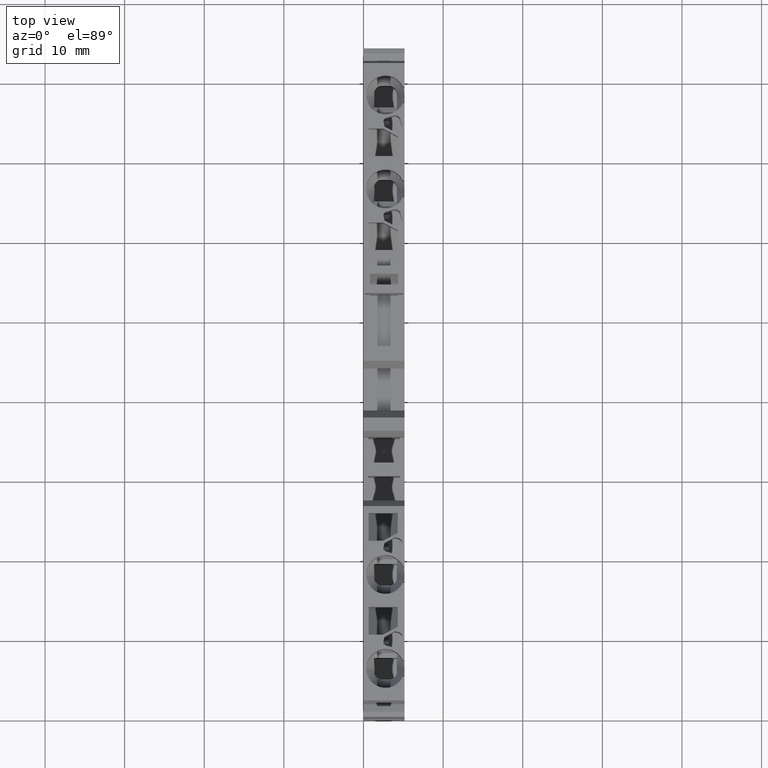
[diagram: clean part render]
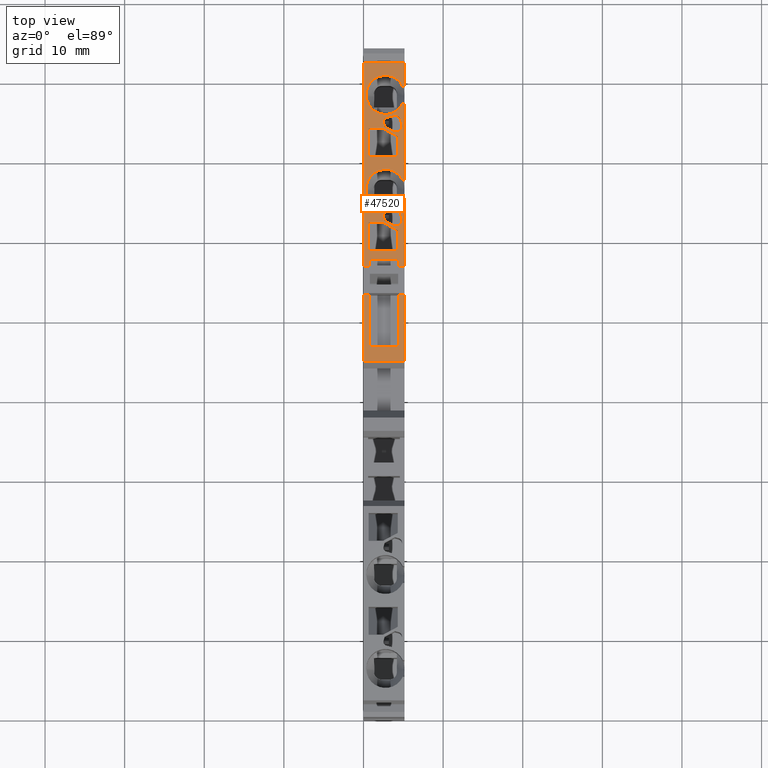
[diagram: same view with one face highlighted and labeled with its STEP entity id]
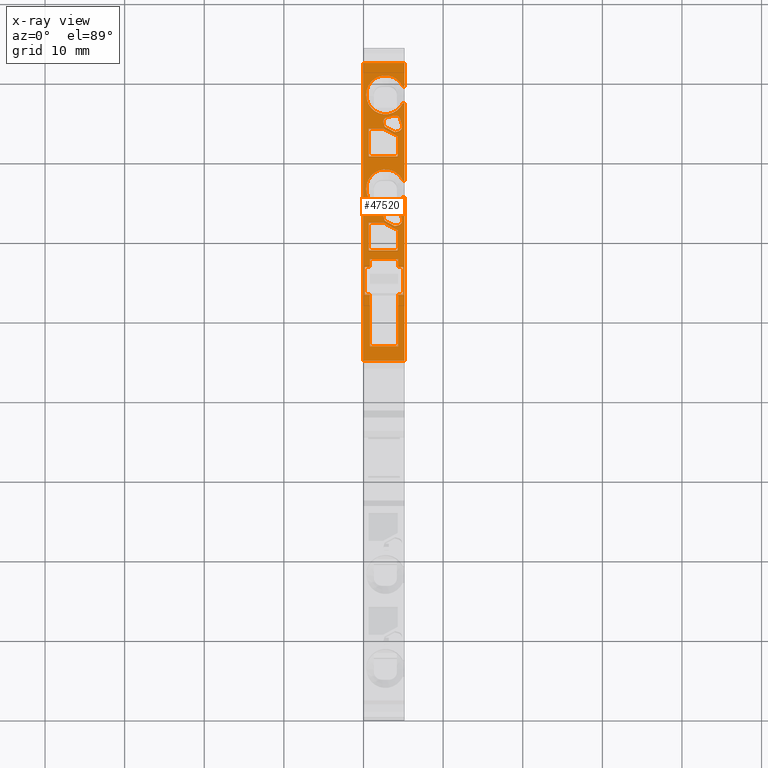
[diagram: x-ray of the same camera — body ghosted, the highlighted face saturated]
A machine part, top view. The second image highlights one B-rep face of the part: STEP entity #47520.
The next image is the same camera in x-ray: the body ghosted, the highlighted face saturated — about 0% of this face is hidden behind the body in this view.
In plain terms, the highlighted planar face has unit normal (0, -0, 1).
Its self-contained STEP definition (entity closure, byte-faithful):
#2900=CARTESIAN_POINT('',(40.5182262383768,-9.15000000000216,
51.5093312729843));
#2910=DIRECTION('',(1.38777878078145E-17,1.,-1.09238746445644E-30));
#2920=DIRECTION('',(-1.,1.38777878078145E-17,1.68987321797373E-17));
#2930=AXIS2_PLACEMENT_3D('',#2900,#2910,#2920);
#2940=CIRCLE('',#2930,0.5);
#2950=CARTESIAN_POINT('',(41.0011891515204,-9.15000000000211,
51.3799217504333));
#2960=VERTEX_POINT('',#2950);
#2970=CARTESIAN_POINT('',(40.3888167158256,-9.15000000000218,
51.0263683598395));
#2980=VERTEX_POINT('',#2970);
#2990=EDGE_CURVE('',#2960,#2980,#2940,.T.);
#8030=CARTESIAN_POINT('',(-30.695855961931,-9.15000000001039,
75.461093256644));
#8040=DIRECTION('',(0.965925826289069,1.11549658399213E-13,
-0.258819045102521));
#8050=VECTOR('',#8040,1.);
#8060=LINE('',#8030,#8050);
#8070=CARTESIAN_POINT('',(51.8276481278213,-9.15000000000085,
53.3489869792084));
#8080=VERTEX_POINT('',#8070);
#8090=CARTESIAN_POINT('',(52.5810702723268,-9.15000000000076,
53.1471081240284));
#8100=VERTEX_POINT('',#8090);
#8110=EDGE_CURVE('',#8080,#8100,#8060,.T.);
#9010=CARTESIAN_POINT('',(34.0044288432876,-9.15000000000291,49.32));
#9020=VERTEX_POINT('',#9010);
#9070=CARTESIAN_POINT('',(-30.695855961931,-9.15000000001039,49.32));
#9080=DIRECTION('',(-1.,-1.1550482792444E-13,0.));
#9090=VECTOR('',#9080,1.);
#9100=LINE('',#9070,#9090);
#9110=CARTESIAN_POINT('',(35.0365791279658,-9.15000000000279,49.32));
#9120=VERTEX_POINT('',#9110);
#9130=EDGE_CURVE('',#9120,#9020,#9100,.T.);
#13630=CARTESIAN_POINT('',(22.2418215966518,-9.15000000000427,
53.6699999999071));
#13640=VERTEX_POINT('',#13630);
#13670=CARTESIAN_POINT('',(-30.695855961931,-9.15000000001039,
53.6699999999007));
#13680=DIRECTION('',(1.,1.1550482792444E-13,1.20466137065733E-13));
#13690=VECTOR('',#13680,1.);
#13700=LINE('',#13670,#13690);
#13710=CARTESIAN_POINT('',(42.806680829654,-9.1500000000019,
53.6699999999095));
#13720=VERTEX_POINT('',#13710);
#13730=EDGE_CURVE('',#13640,#13720,#13700,.T.);
#14130=CARTESIAN_POINT('',(44.906680829654,-9.15000000000165,
53.6699999999098));
#14140=VERTEX_POINT('',#14130);
#14170=CARTESIAN_POINT('',(54.6066811416282,-9.15000000000053,
53.669999999911));
#14180=VERTEX_POINT('',#14170);
#14190=EDGE_CURVE('',#14140,#14180,#13700,.T.);
#14590=CARTESIAN_POINT('',(56.7066811416282,-9.15000000000029,
53.6699999999112));
#14600=VERTEX_POINT('',#14590);
#14630=CARTESIAN_POINT('',(59.6719729923291,-9.14999999999995,
53.6699999999116));
#14640=VERTEX_POINT('',#14630);
#14650=EDGE_CURVE('',#14600,#14640,#13700,.T.);
#17520=CARTESIAN_POINT('',(59.6719729923291,-9.14999999999995,
48.5199999999973));
#17530=VERTEX_POINT('',#17520);
#17560=CARTESIAN_POINT('',(-30.695855961931,-9.15000000001039,
48.5199999999973));
#17570=DIRECTION('',(-1.,-1.1550482792444E-13,0.));
#17580=VECTOR('',#17570,1.);
#17590=LINE('',#17560,#17580);
#17600=CARTESIAN_POINT('',(22.2418215966518,-9.15000000000427,
48.5199999999973));
#17610=VERTEX_POINT('',#17600);
#17620=EDGE_CURVE('',#17530,#17610,#17590,.T.);
#19600=CARTESIAN_POINT('',(38.6291026354003,-9.15000000000238,
52.8200000000004));
#19610=VERTEX_POINT('',#19600);
#19780=CARTESIAN_POINT('',(39.6316808289873,-9.15000000000227,
50.9656099235623));
#19790=VERTEX_POINT('',#19780);
#19820=CARTESIAN_POINT('',(38.1695491275509,-9.15000000000244,53.67));
#19830=DIRECTION('',(-0.47559235530198,-5.49282841433296E-14,
0.879665795389542));
#19840=VECTOR('',#19830,1.);
#19850=LINE('',#19820,#19840);
#19860=EDGE_CURVE('',#19790,#19610,#19850,.T.);
#22990=CARTESIAN_POINT('',(51.6638148431809,-9.15000000000087,
51.1670421876394));
#23000=VERTEX_POINT('',#22990);
#23150=CARTESIAN_POINT('',(50.9671181380194,-9.15000000000095,
52.4556673189286));
#23160=VERTEX_POINT('',#23150);
#23190=CARTESIAN_POINT('',(50.3105877341571,-9.15000000000103,53.67));
#23200=DIRECTION('',(-0.47559235530198,-5.49352230372335E-14,
0.879665795389542));
#23210=VECTOR('',#23200,1.);
#23220=LINE('',#23190,#23210);
#23230=EDGE_CURVE('',#23000,#23160,#23220,.T.);
#23460=CARTESIAN_POINT('',(39.8638148431809,-9.15000000000223,
51.1670421876394));
#23470=VERTEX_POINT('',#23460);
#23620=CARTESIAN_POINT('',(39.1671181380194,-9.15000000000231,
52.4556673189287));
#23630=VERTEX_POINT('',#23620);
#23660=CARTESIAN_POINT('',(38.5105877341572,-9.1500000000024,53.67));
#23670=DIRECTION('',(-0.47559235530198,-5.49352230372335E-14,
0.879665795389542));
#23680=VECTOR('',#23670,1.);
#23690=LINE('',#23660,#23680);
#23700=EDGE_CURVE('',#23470,#23630,#23690,.T.);
#24540=CARTESIAN_POINT('',(52.4076615121074,-9.15000000000079,
52.499937820415));
#24550=DIRECTION('',(1.38777878078145E-17,1.,-1.09238746445644E-30));
#24560=DIRECTION('',(-1.,1.38777878078145E-17,1.68987321797373E-17));
#24570=AXIS2_PLACEMENT_3D('',#24540,#24550,#24560);
#24580=CIRCLE('',#24570,0.67);
#24590=CARTESIAN_POINT('',(53.0548318157208,-9.15000000000071,
52.3265290601966));
#24600=VERTEX_POINT('',#24590);
#24610=EDGE_CURVE('',#8100,#24600,#24580,.T.);
#25510=CARTESIAN_POINT('',(24.082167221673,-9.15000000000406,52.87));
#25520=VERTEX_POINT('',#25510);
#25550=CARTESIAN_POINT('',(24.082167221673,-9.15000000000406,
53.6699999999943));
#25560=DIRECTION('',(1.29035325427599E-29,1.59432732778556E-42,1.));
#25570=VECTOR('',#25560,1.);
#25580=LINE('',#25550,#25570);
#25590=CARTESIAN_POINT('',(24.082167221673,-9.15000000000406,49.32));
#25600=VERTEX_POINT('',#25590);
#25610=EDGE_CURVE('',#25600,#25520,#25580,.T.);
#26140=CARTESIAN_POINT('',(-30.695855961931,-9.15000000001039,
73.2352494687623));
#26150=DIRECTION('',(-0.965925826289068,-1.11549658399213E-13,
0.25881904510252));
#26160=VECTOR('',#26150,1.);
#26170=LINE('',#26140,#26160);
#26180=CARTESIAN_POINT('',(52.1888167158256,-9.15000000000082,
51.0263683598395));
#26190=VERTEX_POINT('',#26180);
#26200=EDGE_CURVE('',#26190,#23000,#26170,.T.);
#26880=CARTESIAN_POINT('',(53.4148137690962,-9.15000000000067,53.67));
#26890=DIRECTION('',(-0.25881904510252,-2.98996938319362E-14,
-0.965925826289069));
#26900=VECTOR('',#26890,1.);
#26910=LINE('',#26880,#26900);
#26920=CARTESIAN_POINT('',(52.8011891515204,-9.15000000000074,
51.3799217504333));
#26930=VERTEX_POINT('',#26920);
#26940=EDGE_CURVE('',#24600,#26930,#26910,.T.);
#27940=CARTESIAN_POINT('',(35.0365791279658,-9.15000000000271,
53.6699999999943));
#27950=DIRECTION('',(-7.51255328673463E-29,-9.27939843075894E-42,-1.));
#27960=VECTOR('',#27950,1.);
#27970=LINE('',#27940,#27960);
#27980=CARTESIAN_POINT('',(35.0365791279658,-9.15000000000279,52.87));
#27990=VERTEX_POINT('',#27980);
#28000=EDGE_CURVE('',#27990,#9120,#27970,.T.);
#29550=CARTESIAN_POINT('',(39.8723567007598,-9.15000000000224,
52.7694314834352));
#29560=DIRECTION('',(1.38777878078145E-17,1.,-1.09238746445644E-30));
#29570=DIRECTION('',(-1.,1.38777878078145E-17,1.68987321797373E-17));
#29580=AXIS2_PLACEMENT_3D('',#29550,#29560,#29570);
#29590=CIRCLE('',#29580,0.6);
#29600=CARTESIAN_POINT('',(39.2928012049854,-9.15000000000231,
52.924722910497));
#29610=VERTEX_POINT('',#29600);
#29620=CARTESIAN_POINT('',(40.0276481278213,-9.15000000000222,
53.3489869792084));
#29630=VERTEX_POINT('',#29620);
#29640=EDGE_CURVE('',#29610,#29630,#29590,.T.);
#30050=CARTESIAN_POINT('',(59.6719729923291,-9.14999999999995,53.67));
#30060=DIRECTION('',(0.,0.,1.));
#30070=VECTOR('',#30060,1.);
#30080=LINE('',#30050,#30070);
#30090=EDGE_CURVE('',#17530,#14640,#30080,.T.);
#31380=CARTESIAN_POINT('',(-30.695855961931,-9.15000000001039,
72.299292785957));
#31390=DIRECTION('',(0.965925826289069,1.11549658399213E-13,
-0.258819045102521));
#31400=VECTOR('',#31390,1.);
#31410=LINE('',#31380,#31400);
#31420=CARTESIAN_POINT('',(40.7810702723268,-9.15000000000213,
53.1471081240284));
#31430=VERTEX_POINT('',#31420);
#31440=EDGE_CURVE('',#29630,#31430,#31410,.T.);
#33400=CARTESIAN_POINT('',(51.4316811409607,-9.1500000000009,
49.1700000000008));
#33410=VERTEX_POINT('',#33400);
#33580=CARTESIAN_POINT('',(47.9316811409607,-9.15000000000131,
49.1700000000008));
#33590=VERTEX_POINT('',#33580);
#33620=CARTESIAN_POINT('',(-30.695855961931,-9.15000000001039,
49.1700000000008));
#33630=DIRECTION('',(1.,1.1550482792444E-13,6.24500451351651E-17));
#33640=VECTOR('',#33630,1.);
#33650=LINE('',#33620,#33640);
#33660=EDGE_CURVE('',#33590,#33410,#33650,.T.);
#40970=CARTESIAN_POINT('',(-30.695855961931,-9.15000000001039,
70.073448998075));
#40980=DIRECTION('',(-0.965925826289068,-1.11549658399213E-13,
0.25881904510252));
#40990=VECTOR('',#40980,1.);
#41000=LINE('',#40970,#40990);
#41010=EDGE_CURVE('',#2980,#23470,#41000,.T.);
#41500=CARTESIAN_POINT('',(36.1316808289873,-9.15000000000266,
49.1700000000008));
#41510=VERTEX_POINT('',#41500);
#41680=CARTESIAN_POINT('',(36.1316808289873,-9.15000000000266,
52.8200000000005));
#41690=VERTEX_POINT('',#41680);
#41720=CARTESIAN_POINT('',(36.1316808289873,-9.15000000000266,53.67));
#41730=DIRECTION('',(1.69244045981681E-16,1.95551222833302E-29,-1.));
#41740=VECTOR('',#41730,1.);
#41750=LINE('',#41720,#41740);
#41760=EDGE_CURVE('',#41690,#41510,#41750,.T.);
#44210=CARTESIAN_POINT('',(41.6148137690969,-9.15000000000204,53.67));
#44220=DIRECTION('',(-0.25881904510252,-2.98996938319362E-14,
-0.965925826289069));
#44230=VECTOR('',#44220,1.);
#44240=LINE('',#44210,#44230);
#44250=CARTESIAN_POINT('',(41.2548318157209,-9.15000000000207,
52.3265290601965));
#44260=VERTEX_POINT('',#44250);
#44270=EDGE_CURVE('',#44260,#2960,#44240,.T.);
#44820=CARTESIAN_POINT('',(40.3488806288421,-9.15000000000218,
50.0197733629679));
#44830=DIRECTION('',(-1.1550482792444E-13,1.,0.));
#44840=DIRECTION('',(-1.,-1.1550482792444E-13,0.));
#44850=AXIS2_PLACEMENT_3D('',#44820,#44830,#44840);
#44860=PLANE('',#44850);
#44870=ORIENTED_EDGE('',*,*,#23230,.F.);
#44880=CARTESIAN_POINT('',(51.2924975992555,-9.15000000000092,53.67));
#44890=DIRECTION('',(0.25881904510252,2.98996938319362E-14,
0.965925826289069));
#44900=VECTOR('',#44890,1.);
#44910=LINE('',#44880,#44900);
#44920=CARTESIAN_POINT('',(51.0928012048643,-9.15000000000094,
52.9247229100449));
#44930=VERTEX_POINT('',#44920);
#44940=EDGE_CURVE('',#23160,#44930,#44910,.T.);
#44950=ORIENTED_EDGE('',*,*,#44940,.F.);
#44960=CARTESIAN_POINT('',(51.6723567007591,-9.15000000000087,
52.7694314834352));
#44970=DIRECTION('',(1.38777878078145E-17,1.,-1.09238746445644E-30));
#44980=DIRECTION('',(-1.,1.38777878078145E-17,1.68987321797373E-17));
#44990=AXIS2_PLACEMENT_3D('',#44960,#44970,#44980);
#45000=CIRCLE('',#44990,0.6);
#45010=EDGE_CURVE('',#44930,#8080,#45000,.T.);
#45020=ORIENTED_EDGE('',*,*,#45010,.F.);
#45030=ORIENTED_EDGE('',*,*,#8110,.F.);
#45040=ORIENTED_EDGE('',*,*,#24610,.F.);
#45050=ORIENTED_EDGE('',*,*,#26940,.F.);
#45060=CARTESIAN_POINT('',(52.3182262383761,-9.15000000000081,
51.5093312729843));
#45070=DIRECTION('',(1.38777878078145E-17,1.,-1.09238746445644E-30));
#45080=DIRECTION('',(-1.,1.38777878078145E-17,1.68987321797373E-17));
#45090=AXIS2_PLACEMENT_3D('',#45060,#45070,#45080);
#45100=CIRCLE('',#45090,0.5);
#45110=EDGE_CURVE('',#26930,#26190,#45100,.T.);
#45120=ORIENTED_EDGE('',*,*,#45110,.F.);
#45130=ORIENTED_EDGE('',*,*,#26200,.F.);
#45140=EDGE_LOOP('',(#45130,#45120,#45050,#45040,#45030,#45020,#44950,
#44870));
#45150=FACE_BOUND('',#45140,.T.);
#45160=ORIENTED_EDGE('',*,*,#41760,.T.);
#45170=CARTESIAN_POINT('',(-30.695855961931,-9.15000000001039,
52.820000000001));
#45180=DIRECTION('',(-1.,-1.1550482792444E-13,7.84788900531908E-15));
#45190=VECTOR('',#45180,1.);
#45200=LINE('',#45170,#45190);
#45210=EDGE_CURVE('',#19610,#41690,#45200,.T.);
#45220=ORIENTED_EDGE('',*,*,#45210,.T.);
#45230=ORIENTED_EDGE('',*,*,#19860,.T.);
#45240=CARTESIAN_POINT('',(39.6316808289873,-9.15000000000227,53.67));
#45250=DIRECTION('',(-1.69244045981681E-16,-1.95551222833302E-29,1.));
#45260=VECTOR('',#45250,1.);
#45270=LINE('',#45240,#45260);
#45280=CARTESIAN_POINT('',(39.6316808289873,-9.15000000000227,
49.1699999999969));
#45290=VERTEX_POINT('',#45280);
#45300=EDGE_CURVE('',#45290,#19790,#45270,.T.);
#45310=ORIENTED_EDGE('',*,*,#45300,.T.);
#45320=CARTESIAN_POINT('',(-30.695855961931,-9.15000000001039,
49.1700000000008));
#45330=DIRECTION('',(1.,1.1550482792444E-13,1.45716771982052E-16));
#45340=VECTOR('',#45330,1.);
#45350=LINE('',#45320,#45340);
#45360=EDGE_CURVE('',#41510,#45290,#45350,.T.);
#45370=ORIENTED_EDGE('',*,*,#45360,.T.);
#45380=EDGE_LOOP('',(#45370,#45310,#45230,#45220,#45160));
#45390=FACE_BOUND('',#45380,.T.);
#45400=CARTESIAN_POINT('',(47.9316811409607,-9.15000000000131,53.67));
#45410=DIRECTION('',(9.18675646939643E-17,1.06188073413735E-29,-1.));
#45420=VECTOR('',#45410,1.);
#45430=LINE('',#45400,#45420);
#45440=CARTESIAN_POINT('',(47.9316811409607,-9.15000000000131,
52.8200000000005));
#45450=VERTEX_POINT('',#45440);
#45460=EDGE_CURVE('',#45450,#33590,#45430,.T.);
#45470=ORIENTED_EDGE('',*,*,#45460,.T.);
#45480=CARTESIAN_POINT('',(-30.695855961931,-9.15000000001039,
52.8200000000011));
#45490=DIRECTION('',(-1.,-1.1550482792444E-13,7.91727794435815E-15));
#45500=VECTOR('',#45490,1.);
#45510=LINE('',#45480,#45500);
#45520=CARTESIAN_POINT('',(50.4291029473738,-9.15000000000102,
52.8200000000004));
#45530=VERTEX_POINT('',#45520);
#45540=EDGE_CURVE('',#45530,#45450,#45510,.T.);
#45550=ORIENTED_EDGE('',*,*,#45540,.T.);
#45560=CARTESIAN_POINT('',(49.9695494395243,-9.15000000000107,53.67));
#45570=DIRECTION('',(-0.47559235530198,-5.49213452494257E-14,
0.879665795389542));
#45580=VECTOR('',#45570,1.);
#45590=LINE('',#45560,#45580);
#45600=CARTESIAN_POINT('',(51.4316811409608,-9.1500000000009,
50.9656099235623));
#45610=VERTEX_POINT('',#45600);
#45620=EDGE_CURVE('',#45610,#45530,#45590,.T.);
#45630=ORIENTED_EDGE('',*,*,#45620,.T.);
#45640=CARTESIAN_POINT('',(51.4316811409607,-9.1500000000009,53.67));
#45650=DIRECTION('',(-9.18675646939643E-17,-1.06188073413735E-29,1.));
#45660=VECTOR('',#45650,1.);
#45670=LINE('',#45640,#45660);
#45680=EDGE_CURVE('',#33410,#45610,#45670,.T.);
#45690=ORIENTED_EDGE('',*,*,#45680,.T.);
#45700=ORIENTED_EDGE('',*,*,#33660,.T.);
#45710=EDGE_LOOP('',(#45700,#45690,#45630,#45550,#45470));
#45720=FACE_BOUND('',#45710,.T.);
#45730=ORIENTED_EDGE('',*,*,#23700,.F.);
#45740=CARTESIAN_POINT('',(39.4924975992562,-9.15000000000228,53.67));
#45750=DIRECTION('',(0.25881904510252,2.98996938319362E-14,
0.965925826289069));
#45760=VECTOR('',#45750,1.);
#45770=LINE('',#45740,#45760);
#45780=EDGE_CURVE('',#23630,#29610,#45770,.T.);
#45790=ORIENTED_EDGE('',*,*,#45780,.F.);
#45800=ORIENTED_EDGE('',*,*,#29640,.F.);
#45810=ORIENTED_EDGE('',*,*,#31440,.F.);
#45820=CARTESIAN_POINT('',(40.6076615121082,-9.15000000000215,
52.499937820415));
#45830=DIRECTION('',(-1.38777878078145E-17,-1.,1.09238746445644E-30));
#45840=DIRECTION('',(-1.,1.38777878078145E-17,1.68987321797373E-17));
#45850=AXIS2_PLACEMENT_3D('',#45820,#45830,#45840);
#45860=CIRCLE('',#45850,0.67);
#45870=EDGE_CURVE('',#44260,#31430,#45860,.T.);
#45880=ORIENTED_EDGE('',*,*,#45870,.T.);
#45890=ORIENTED_EDGE('',*,*,#44270,.F.);
#45900=ORIENTED_EDGE('',*,*,#2990,.F.);
#45910=ORIENTED_EDGE('',*,*,#41010,.F.);
#45920=EDGE_LOOP('',(#45910,#45900,#45890,#45880,#45810,#45800,#45790,
#45730));
#45930=FACE_BOUND('',#45920,.T.);
#45940=CARTESIAN_POINT('',(34.0044288432398,-9.15000000000292,53.67));
#45950=DIRECTION('',(1.09735119455596E-11,1.26783200332224E-24,-1.));
#45960=VECTOR('',#45950,1.);
#45970=LINE('',#45940,#45960);
#45980=CARTESIAN_POINT('',(34.0044288432413,-9.15000000000292,
53.530000000507));
#45990=VERTEX_POINT('',#45980);
#46000=CARTESIAN_POINT('',(34.0044288432487,-9.15000000000291,52.87));
#46010=VERTEX_POINT('',#46000);
#46020=EDGE_CURVE('',#45990,#46010,#45970,.T.);
#46030=ORIENTED_EDGE('',*,*,#46020,.F.);
#46040=CARTESIAN_POINT('',(-30.695855961931,-9.15000000001039,52.87));
#46050=DIRECTION('',(1.,1.1550482792444E-13,0.));
#46060=VECTOR('',#46050,1.);
#46070=LINE('',#46040,#46060);
#46080=EDGE_CURVE('',#46010,#27990,#46070,.T.);
#46090=ORIENTED_EDGE('',*,*,#46080,.F.);
#46100=ORIENTED_EDGE('',*,*,#28000,.F.);
#46110=ORIENTED_EDGE('',*,*,#9130,.F.);
#46120=CARTESIAN_POINT('',(34.0044288432948,-9.15000000000292,
48.660000000507));
#46130=VERTEX_POINT('',#46120);
#46140=EDGE_CURVE('',#9020,#46130,#45970,.T.);
#46150=ORIENTED_EDGE('',*,*,#46140,.F.);
#46160=CARTESIAN_POINT('',(-30.695855961931,-9.15000000001039,
48.659999999797));
#46170=DIRECTION('',(1.,1.1550482792444E-13,1.0973520703228E-11));
#46180=VECTOR('',#46170,1.);
#46190=LINE('',#46160,#46180);
#46200=CARTESIAN_POINT('',(30.5551405789817,-9.15000000000331,
48.6600000004692));
#46210=VERTEX_POINT('',#46200);
#46220=EDGE_CURVE('',#46210,#46130,#46190,.T.);
#46230=ORIENTED_EDGE('',*,*,#46220,.T.);
#46240=CARTESIAN_POINT('',(30.5551405789267,-9.15000000000331,53.67));
#46250=DIRECTION('',(-1.09735121067409E-11,-1.26823590010572E-24,1.));
#46260=VECTOR('',#46250,1.);
#46270=LINE('',#46240,#46260);
#46280=CARTESIAN_POINT('',(30.5551405789745,-9.15000000000331,49.32));
#46290=VERTEX_POINT('',#46280);
#46300=EDGE_CURVE('',#46210,#46290,#46270,.T.);
#46310=ORIENTED_EDGE('',*,*,#46300,.F.);
#46320=CARTESIAN_POINT('',(-30.695855961931,-9.15000000001039,49.32));
#46330=DIRECTION('',(-1.,-1.1550482792444E-13,0.));
#46340=VECTOR('',#46330,1.);
#46350=LINE('',#46320,#46340);
#46360=EDGE_CURVE('',#46290,#25600,#46350,.T.);
#46370=ORIENTED_EDGE('',*,*,#46360,.F.);
#46380=ORIENTED_EDGE('',*,*,#25610,.F.);
#46390=CARTESIAN_POINT('',(-30.695855961931,-9.15000000001039,52.87));
#46400=DIRECTION('',(1.,1.1550482792444E-13,0.));
#46410=VECTOR('',#46400,1.);
#46420=LINE('',#46390,#46410);
#46430=CARTESIAN_POINT('',(30.5551405789356,-9.15000000000331,52.87));
#46440=VERTEX_POINT('',#46430);
#46450=EDGE_CURVE('',#25520,#46440,#46420,.T.);
#46460=ORIENTED_EDGE('',*,*,#46450,.F.);
#46470=CARTESIAN_POINT('',(30.5551405789283,-9.15000000000331,
53.5300000004692));
#46480=VERTEX_POINT('',#46470);
#46490=EDGE_CURVE('',#46440,#46480,#46270,.T.);
#46500=ORIENTED_EDGE('',*,*,#46490,.F.);
#46510=CARTESIAN_POINT('',(-30.695855961931,-9.15000000001039,
53.529999999797));
#46520=DIRECTION('',(1.,1.1550482792444E-13,1.0973520703228E-11));
#46530=VECTOR('',#46520,1.);
#46540=LINE('',#46510,#46530);
#46550=EDGE_CURVE('',#46480,#45990,#46540,.T.);
#46560=ORIENTED_EDGE('',*,*,#46550,.F.);
#46570=EDGE_LOOP('',(#46560,#46500,#46460,#46380,#46370,#46310,#46230,
#46150,#46110,#46100,#46090,#46030));
#46580=FACE_BOUND('',#46570,.T.);
#46590=CARTESIAN_POINT('',(56.7066811416282,-9.15000000000029,53.67));
#46600=DIRECTION('',(2.24755220521169E-16,2.59615356503399E-29,-1.));
#46610=VECTOR('',#46600,1.);
#46620=LINE('',#46590,#46610);
#46630=CARTESIAN_POINT('',(56.7066811416282,-9.15000000020108,
53.4517424225694));
#46640=VERTEX_POINT('',#46630);
#46650=EDGE_CURVE('',#14600,#46640,#46620,.T.);
#46660=ORIENTED_EDGE('',*,*,#46650,.F.);
#46670=CARTESIAN_POINT('',(55.7066811416279,-9.1500000000004,
51.2699999996424));
#46680=DIRECTION('',(2.00679209361176E-10,1.,-5.07383063363861E-18));
#46690=DIRECTION('',(1.,-2.00679209361176E-10,2.07856488340614E-16));
#46700=AXIS2_PLACEMENT_3D('',#46670,#46680,#46690);
#46710=CIRCLE('',#46700,2.4);
#46720=CARTESIAN_POINT('',(55.7066811416279,-9.1500000000004,
48.8699999996424));
#46730=VERTEX_POINT('',#46720);
#46740=EDGE_CURVE('',#46640,#46730,#46710,.T.);
#46750=ORIENTED_EDGE('',*,*,#46740,.F.);
#46760=CARTESIAN_POINT('',(-30.695855961931,-9.15000000001039,
48.8699999996424));
#46770=DIRECTION('',(-1.,-1.1550482792444E-13,-9.5062846483529E-16));
#46780=VECTOR('',#46770,1.);
#46790=LINE('',#46760,#46780);
#46800=CARTESIAN_POINT('',(55.6066811416281,-9.15000000000042,
48.8699999996424));
#46810=VERTEX_POINT('',#46800);
#46820=EDGE_CURVE('',#46730,#46810,#46790,.T.);
#46830=ORIENTED_EDGE('',*,*,#46820,.F.);
#46840=CARTESIAN_POINT('',(55.6066811416282,-9.15000000000042,
51.2699999996424));
#46850=DIRECTION('',(-2.00561928176413E-10,-1.,5.07383063366299E-18));
#46860=DIRECTION('',(1.,-2.00561928176413E-10,2.07856488340614E-16));
#46870=AXIS2_PLACEMENT_3D('',#46840,#46850,#46860);
#46880=CIRCLE('',#46870,2.4);
#46890=CARTESIAN_POINT('',(54.6066811416282,-9.14999999979986,
53.4517424225696));
#46900=VERTEX_POINT('',#46890);
#46910=EDGE_CURVE('',#46900,#46810,#46880,.T.);
#46920=ORIENTED_EDGE('',*,*,#46910,.T.);
#46930=CARTESIAN_POINT('',(54.6066811416282,-9.15000000000053,53.67));
#46940=DIRECTION('',(-2.24755220521169E-16,-2.59615356503399E-29,1.));
#46950=VECTOR('',#46940,1.);
#46960=LINE('',#46930,#46950);
#46970=EDGE_CURVE('',#46900,#14180,#46960,.T.);
#46980=ORIENTED_EDGE('',*,*,#46970,.F.);
#46990=ORIENTED_EDGE('',*,*,#14190,.T.);
#47000=CARTESIAN_POINT('',(44.906680829654,-9.15000000000165,53.67));
#47010=DIRECTION('',(2.24755220521169E-16,2.59615356503399E-29,-1.));
#47020=VECTOR('',#47010,1.);
#47030=LINE('',#47000,#47020);
#47040=CARTESIAN_POINT('',(44.906680829654,-9.15000000000165,
53.4517424225661));
#47050=VERTEX_POINT('',#47040);
#47060=EDGE_CURVE('',#14140,#47050,#47030,.T.);
#47070=ORIENTED_EDGE('',*,*,#47060,.F.);
#47080=CARTESIAN_POINT('',(43.9066808296538,-9.15000000000177,
51.2699999996392));
#47090=DIRECTION('',(2.00679209361176E-10,1.,-5.07383063363861E-18));
#47100=DIRECTION('',(1.,-2.00679209361176E-10,2.07856488340614E-16));
#47110=AXIS2_PLACEMENT_3D('',#47080,#47090,#47100);
#47120=CIRCLE('',#47110,2.4);
#47130=CARTESIAN_POINT('',(43.9066808296537,-9.15000000000176,
48.8699999996392));
#47140=VERTEX_POINT('',#47130);
#47150=EDGE_CURVE('',#47050,#47140,#47120,.T.);
#47160=ORIENTED_EDGE('',*,*,#47150,.F.);
#47170=CARTESIAN_POINT('',(-30.695855961931,-9.15000000001039,
48.8699999996391));
#47180=DIRECTION('',(-1.,-1.1550482792444E-13,-9.5062846483529E-16));
#47190=VECTOR('',#47180,1.);
#47200=LINE('',#47170,#47190);
#47210=CARTESIAN_POINT('',(43.806680829654,-9.15000000000178,
48.8699999996392));
#47220=VERTEX_POINT('',#47210);
#47230=EDGE_CURVE('',#47140,#47220,#47200,.T.);
#47240=ORIENTED_EDGE('',*,*,#47230,.F.);
#47250=CARTESIAN_POINT('',(43.806680829654,-9.15000000000178,
51.2699999996392));
#47260=DIRECTION('',(-2.00561928176413E-10,-1.,5.07383063366299E-18));
#47270=DIRECTION('',(1.,-2.00561928176413E-10,2.07856488340614E-16));
#47280=AXIS2_PLACEMENT_3D('',#47250,#47260,#47270);
#47290=CIRCLE('',#47280,2.4);
#47300=CARTESIAN_POINT('',(42.806680829654,-9.14999999980122,
53.4517424225663));
#47310=VERTEX_POINT('',#47300);
#47320=EDGE_CURVE('',#47310,#47220,#47290,.T.);
#47330=ORIENTED_EDGE('',*,*,#47320,.T.);
#47340=CARTESIAN_POINT('',(42.806680829654,-9.1500000000019,53.67));
#47350=DIRECTION('',(-2.24755220521169E-16,-2.59615356503399E-29,1.));
#47360=VECTOR('',#47350,1.);
#47370=LINE('',#47340,#47360);
#47380=EDGE_CURVE('',#47310,#13720,#47370,.T.);
#47390=ORIENTED_EDGE('',*,*,#47380,.F.);
#47400=ORIENTED_EDGE('',*,*,#13730,.T.);
#47410=CARTESIAN_POINT('',(22.2418215966518,-9.15000000000427,53.67));
#47420=DIRECTION('',(0.,0.,1.));
#47430=VECTOR('',#47420,1.);
#47440=LINE('',#47410,#47430);
#47450=EDGE_CURVE('',#17610,#13640,#47440,.T.);
#47460=ORIENTED_EDGE('',*,*,#47450,.T.);
#47470=ORIENTED_EDGE('',*,*,#17620,.T.);
#47480=ORIENTED_EDGE('',*,*,#30090,.F.);
#47490=ORIENTED_EDGE('',*,*,#14650,.T.);
#47500=EDGE_LOOP('',(#47490,#47480,#47470,#47460,#47400,#47390,#47330,
#47240,#47160,#47070,#46990,#46980,#46920,#46830,#46750,#46660));
#47510=FACE_OUTER_BOUND('',#47500,.T.);
#47520=ADVANCED_FACE('',(#45150,#45390,#45720,#45930,#46580,#47510),
#44860,.T.);